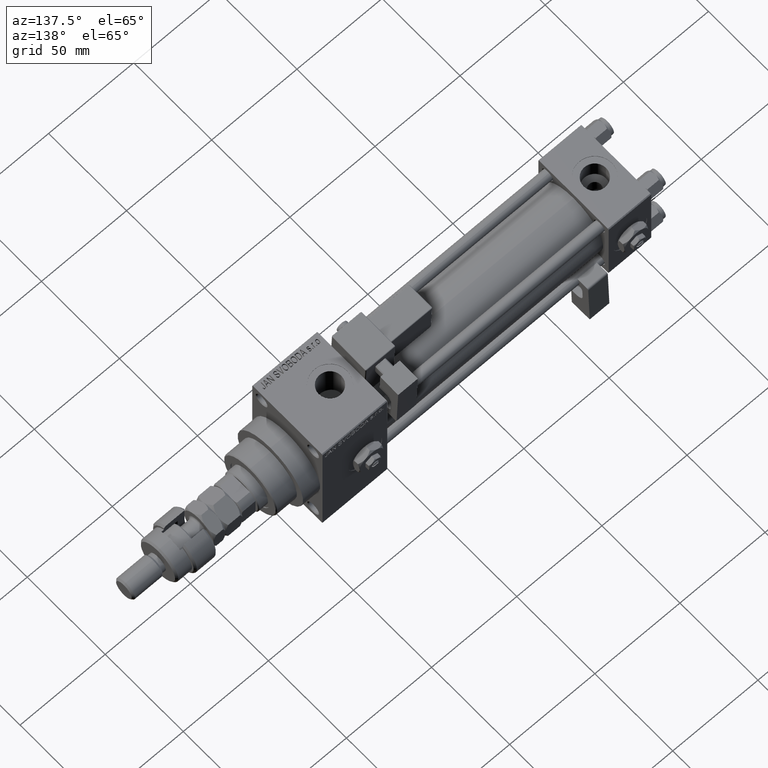
[diagram: clean part render]
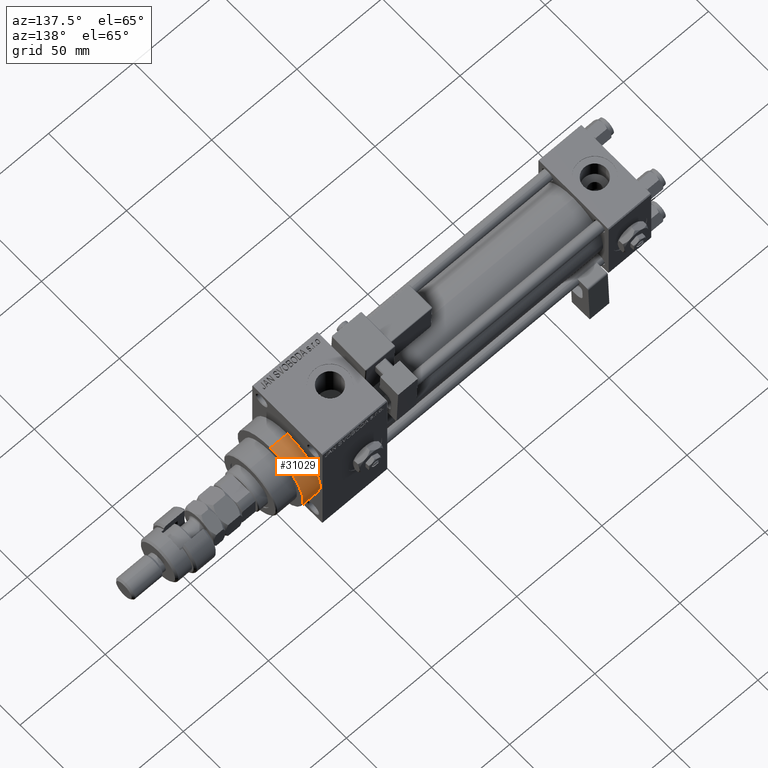
[diagram: same view with one face highlighted and labeled with its STEP entity id]
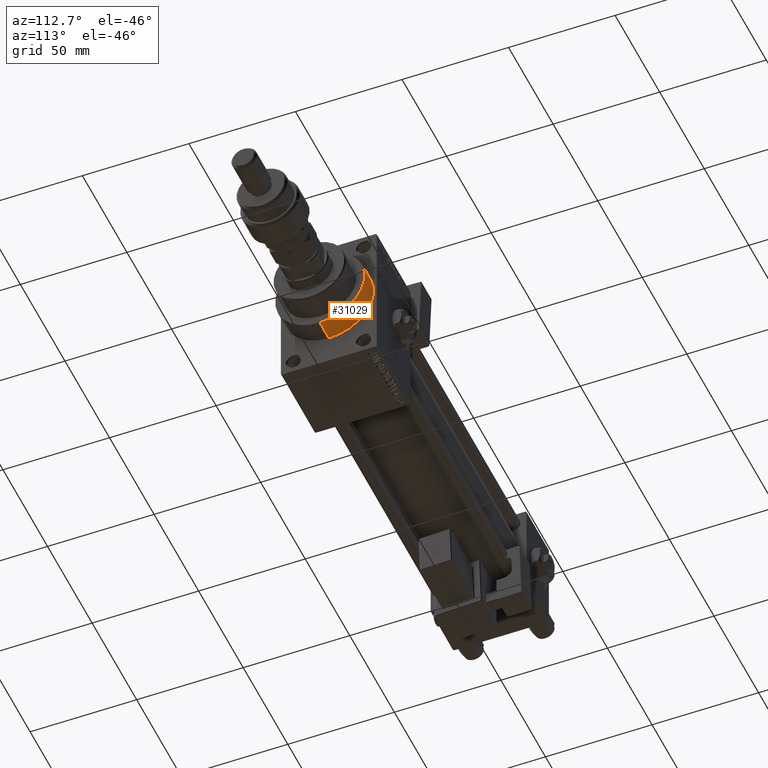
[diagram: same view with one face highlighted and labeled with its STEP entity id]
A machine part, auxiliary view. The second image highlights one B-rep face of the part: STEP entity #31029.
A second angle (auxiliary view) of the same face is appended — the face is thin or edge-on in the first view.
In plain terms, the highlighted cylindrical surface (partial cylindrical patch) has radius 21 mm, axis along (-1, -0, -0).
Its self-contained STEP definition (entity closure, byte-faithful):
#2040 = AXIS2_PLACEMENT_3D ( 'NONE', #48825, #48551, #15649 ) ;
#2472 = LINE ( 'NONE', #36984, #40518 ) ;
#5876 = DIRECTION ( 'NONE',  ( 1.000000000000000000, 0.000000000000000000, 0.000000000000000000 ) ) ;
#10177 = DIRECTION ( 'NONE',  ( 0.000000000000000000, 0.000000000000000000, -1.000000000000000000 ) ) ;
#10250 = DIRECTION ( 'NONE',  ( 0.000000000000000000, 0.000000000000000000, -1.000000000000000000 ) ) ;
#10448 = CARTESIAN_POINT ( 'NONE',  ( 193.0000000000000000, 0.000000000000000000, 0.000000000000000000 ) ) ;
#10818 = VERTEX_POINT ( 'NONE', #32853 ) ;
#11151 = VERTEX_POINT ( 'NONE', #37629 ) ;
#15649 = DIRECTION ( 'NONE',  ( 0.000000000000000000, 0.000000000000000000, 1.000000000000000000 ) ) ;
#16858 = EDGE_CURVE ( 'NONE', #11151, #39234, #45370, .T. ) ;
#21785 = CARTESIAN_POINT ( 'NONE',  ( 203.0000000000000000, 0.000000000000000000, 0.000000000000000000 ) ) ;
#23793 = ORIENTED_EDGE ( 'NONE', *, *, #28769, .T. ) ;
#25148 = EDGE_CURVE ( 'NONE', #39234, #32613, #30936, .T. ) ;
#26180 = ORIENTED_EDGE ( 'NONE', *, *, #16858, .F. ) ;
#26233 = CARTESIAN_POINT ( 'NONE',  ( 193.0000000000000000, 0.000000000000000000, 21.00000000000000000 ) ) ;
#27024 = ORIENTED_EDGE ( 'NONE', *, *, #32904, .T. ) ;
#27785 = ORIENTED_EDGE ( 'NONE', *, *, #25148, .F. ) ;
#28769 = EDGE_CURVE ( 'NONE', #11151, #10818, #2472, .T. ) ;
#30677 = CARTESIAN_POINT ( 'NONE',  ( 203.0000000000000000, 0.000000000000000000, 21.00000000000000000 ) ) ;
#30936 = LINE ( 'NONE', #35047, #31692 ) ;
#31029 = ADVANCED_FACE ( 'NONE', ( #39791 ), #31818, .T. ) ;
#31692 = VECTOR ( 'NONE', #51769, 1000.000000000000000 ) ;
#31818 = CYLINDRICAL_SURFACE ( 'NONE', #2040, 21.00000000000000000 ) ;
#32613 = VERTEX_POINT ( 'NONE', #26233 ) ;
#32853 = CARTESIAN_POINT ( 'NONE',  ( 193.0000000000000000, 2.571758278209441661E-15, -21.00000000000000000 ) ) ;
#32904 = EDGE_CURVE ( 'NONE', #10818, #32613, #48217, .T. ) ;
#35047 = CARTESIAN_POINT ( 'NONE',  ( 203.0000000000000000, 0.000000000000000000, 21.00000000000000000 ) ) ;
#36984 = CARTESIAN_POINT ( 'NONE',  ( 203.0000000000000000, 2.571758278209441661E-15, -21.00000000000000000 ) ) ;
#37629 = CARTESIAN_POINT ( 'NONE',  ( 203.0000000000000000, 2.571758278209441661E-15, -21.00000000000000000 ) ) ;
#39234 = VERTEX_POINT ( 'NONE', #30677 ) ;
#39791 = FACE_OUTER_BOUND ( 'NONE', #42290, .T. ) ;
#40518 = VECTOR ( 'NONE', #53168, 1000.000000000000000 ) ;
#42290 = EDGE_LOOP ( 'NONE', ( #26180, #23793, #27024, #27785 ) ) ;
#45370 = CIRCLE ( 'NONE', #46223, 21.00000000000000000 ) ;
#46223 = AXIS2_PLACEMENT_3D ( 'NONE', #21785, #5876, #10250 ) ;
#47313 = AXIS2_PLACEMENT_3D ( 'NONE', #10448, #51056, #10177 ) ;
#48217 = CIRCLE ( 'NONE', #47313, 21.00000000000000000 ) ;
#48551 = DIRECTION ( 'NONE',  ( -1.000000000000000000, -0.000000000000000000, -0.000000000000000000 ) ) ;
#48825 = CARTESIAN_POINT ( 'NONE',  ( 203.0000000000000000, 0.000000000000000000, 0.000000000000000000 ) ) ;
#51056 = DIRECTION ( 'NONE',  ( 1.000000000000000000, 0.000000000000000000, 0.000000000000000000 ) ) ;
#51769 = DIRECTION ( 'NONE',  ( -1.000000000000000000, -0.000000000000000000, -0.000000000000000000 ) ) ;
#53168 = DIRECTION ( 'NONE',  ( -1.000000000000000000, -0.000000000000000000, -0.000000000000000000 ) ) ;